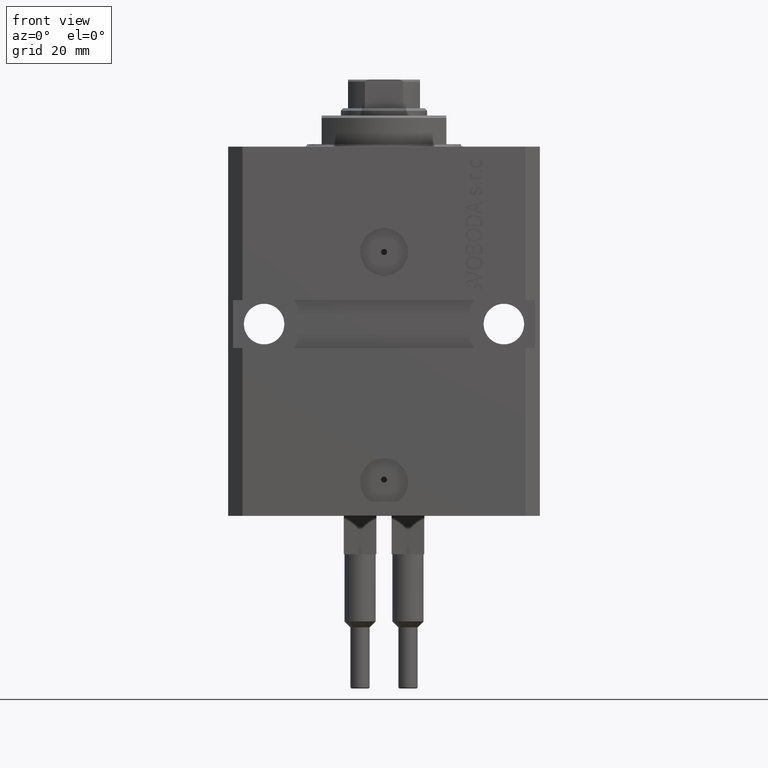
[diagram: clean part render]
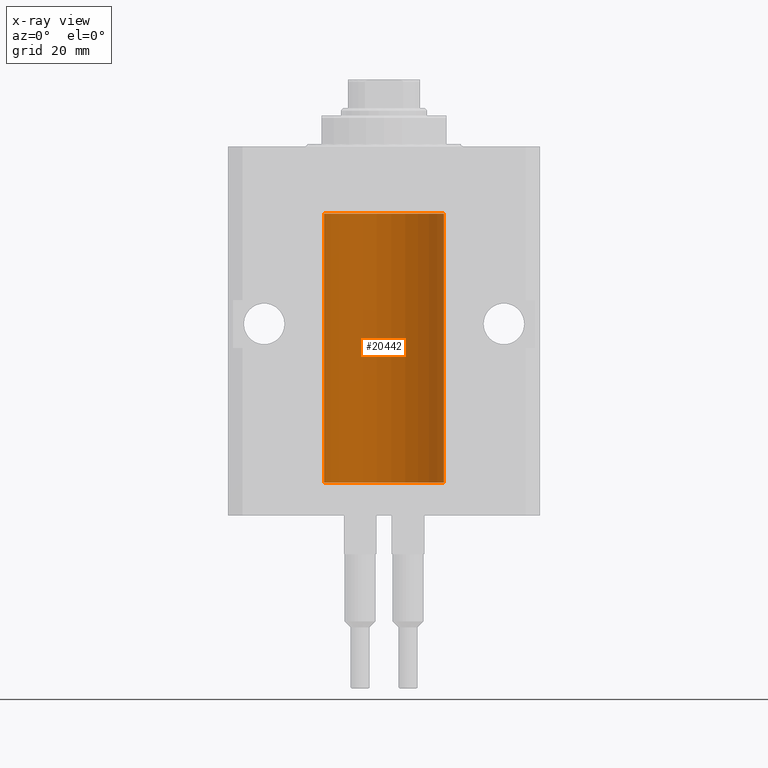
[diagram: x-ray — body ghosted, one internal face saturated and labeled with its STEP entity id]
A machine part, front view, then the same camera in x-ray: the body is ghosted and one INTERNAL B-rep face — a face not visible from any outside direction — is saturated and labeled: STEP entity #20442.
In plain terms, the highlighted cylindrical surface (partial cylindrical patch) has radius 12.5 mm, axis along (0, 0, 1).
Its self-contained STEP definition (entity closure, byte-faithful):
#1626 = VECTOR ( 'NONE', #45564, 1000.000000000000000 ) ;
#2144 = CARTESIAN_POINT ( 'NONE',  ( -12.49011732893843885, 0.5003763274120245352, -65.38348111289289477 ) ) ;
#2194 = VERTEX_POINT ( 'NONE', #34569 ) ;
#3290 = EDGE_CURVE ( 'NONE', #20895, #29060, #7616, .T. ) ;
#4784 = CARTESIAN_POINT ( 'NONE',  ( -12.50000000000000000, 1.530808498934191521E-15, -70.09999999999999432 ) ) ;
#5165 = VERTEX_POINT ( 'NONE', #37192 ) ;
#5752 = CARTESIAN_POINT ( 'NONE',  ( 12.50000000000000000, 0.000000000000000000, -70.09999999999999432 ) ) ;
#5776 = CARTESIAN_POINT ( 'NONE',  ( -12.48810268015257741, 0.5573155909661293705, -64.67347410093867666 ) ) ;
#6091 = VERTEX_POINT ( 'NONE', #41517 ) ;
#6341 = FACE_OUTER_BOUND ( 'NONE', #46190, .T. ) ;
#6590 = VERTEX_POINT ( 'NONE', #24911 ) ;
#6640 = CARTESIAN_POINT ( 'NONE',  ( -12.48436376893640443, 0.6250290278979917513, -22.08132082824473486 ) ) ;
#6915 = CARTESIAN_POINT ( 'NONE',  ( -12.50000000000017941, 3.883381774819353300E-13, -65.62500000000359535 ) ) ;
#7616 = LINE ( 'NONE', #37480, #7785 ) ;
#7655 = CARTESIAN_POINT ( 'NONE',  ( 12.50000000000000000, 0.000000000000000000, -13.99999999999999822 ) ) ;
#7758 = DIRECTION ( 'NONE',  ( 1.000000000000000000, 0.000000000000000000, 0.000000000000000000 ) ) ;
#7785 = VECTOR ( 'NONE', #22892, 1000.000000000000000 ) ;
#7810 = CARTESIAN_POINT ( 'NONE',  ( -12.50000000000000000, 1.530808498934191521E-15, -13.99999999999999822 ) ) ;
#7912 = ORIENTED_EDGE ( 'NONE', *, *, #20179, .T. ) ;
#8702 = CARTESIAN_POINT ( 'NONE',  ( -12.49999999999999822, 0.1631761135151225950, -65.62499999999985789 ) ) ;
#9302 = CARTESIAN_POINT ( 'NONE',  ( -12.49631005746706336, 0.3253680783018528255, -22.55856740465392463 ) ) ;
#9501 = CARTESIAN_POINT ( 'NONE',  ( -12.50000000000000000, 1.530808498934191521E-15, -70.09999999999999432 ) ) ;
#11001 = AXIS2_PLACEMENT_3D ( 'NONE', #44435, #11166, #7758 ) ;
#11166 = DIRECTION ( 'NONE',  ( 0.000000000000000000, 0.000000000000000000, 1.000000000000000000 ) ) ;
#11215 = ORIENTED_EDGE ( 'NONE', *, *, #37535, .F. ) ;
#11623 = B_SPLINE_CURVE_WITH_KNOTS ( 'NONE', 3,
 ( #42196, #31511, #38551, #12574, #38787, #5776, #23249, #16680, #31029, #27377, #2144, #38076, #8702, #46313 ),
 .UNSPECIFIED., .F., .F.,
 ( 4, 2, 2, 2, 2, 2, 4 ),
 ( 3.492495172846855184E-18, 0.0002442924852390798859, 0.0004885849704781563023, 0.0009771699409563386254, 0.001221462426195450658, 0.001465754911434562473, 0.001954339881912786538 ),
 .UNSPECIFIED. ) ;
#12151 = CIRCLE ( 'NONE', #30780, 12.50000000000000000 ) ;
#12574 = CARTESIAN_POINT ( 'NONE',  ( -12.49625855304193500, 0.3150454781038046770, -64.45402800297485157 ) ) ;
#13090 = ORIENTED_EDGE ( 'NONE', *, *, #24669, .F. ) ;
#13424 = CARTESIAN_POINT ( 'NONE',  ( -12.49915784441386890, 0.1636601911727947889, -21.39126818989430490 ) ) ;
#13608 = DIRECTION ( 'NONE',  ( 1.000000000000000000, 0.000000000000000000, 0.000000000000000000 ) ) ;
#13663 = CARTESIAN_POINT ( 'NONE',  ( -12.49422197749724006, 0.3843754434364375916, -21.50047099568095277 ) ) ;
#13668 = DIRECTION ( 'NONE',  ( 0.000000000000000000, 0.000000000000000000, 1.000000000000000000 ) ) ;
#13897 = CARTESIAN_POINT ( 'NONE',  ( -12.48436813453758454, 0.6249418250771192618, -21.83668996798922635 ) ) ;
#15217 = LINE ( 'NONE', #4784, #1626 ) ;
#16584 = CARTESIAN_POINT ( 'NONE',  ( -12.48520330846397819, 0.6088355886774127201, -22.16325431852561323 ) ) ;
#16680 = CARTESIAN_POINT ( 'NONE',  ( -12.48436376893640265, 0.6250290278979918623, -65.08132082824472775 ) ) ;
#17242 = CARTESIAN_POINT ( 'NONE',  ( 0.000000000000000000, 0.000000000000000000, -70.09999999999999432 ) ) ;
#17794 = VERTEX_POINT ( 'NONE', #7810 ) ;
#18418 = EDGE_CURVE ( 'NONE', #5165, #17794, #15217, .T. ) ;
#19003 = VECTOR ( 'NONE', #46644, 1000.000000000000000 ) ;
#20179 = EDGE_CURVE ( 'NONE', #5165, #2194, #21455, .T. ) ;
#20442 = ADVANCED_FACE ( 'NONE', ( #6341 ), #31362, .F. ) ;
#20459 = CARTESIAN_POINT ( 'NONE',  ( -12.49011732893843529, 0.5003763274120274218, -22.38348111289287701 ) ) ;
#20895 = VERTEX_POINT ( 'NONE', #5752 ) ;
#21455 = B_SPLINE_CURVE_WITH_KNOTS ( 'NONE', 3,
 ( #39895, #28472, #13424, #36008, #13663, #28709, #13897, #6640, #16584, #27750, #20459, #9302, #35286, #35763 ),
 .UNSPECIFIED., .F., .F.,
 ( 4, 2, 2, 2, 2, 2, 4 ),
 ( 2.030551168097110502E-20, 0.0002442924852390969078, 0.0004885849704781938157, 0.0009771699409563880650, 0.001221462426195485135, 0.001465754911434582423, 0.001954339881912776130 ),
 .UNSPECIFIED. ) ;
#21819 = ORIENTED_EDGE ( 'NONE', *, *, #24773, .F. ) ;
#22892 = DIRECTION ( 'NONE',  ( -0.000000000000000000, -0.000000000000000000, 1.000000000000000000 ) ) ;
#23249 = CARTESIAN_POINT ( 'NONE',  ( -12.48436813453758809, 0.6249418250771181516, -64.83668996798922990 ) ) ;
#23732 = ORIENTED_EDGE ( 'NONE', *, *, #18418, .F. ) ;
#24113 = VECTOR ( 'NONE', #47587, 1000.000000000000000 ) ;
#24669 = EDGE_CURVE ( 'NONE', #6590, #2194, #44901, .T. ) ;
#24773 = EDGE_CURVE ( 'NONE', #20895, #6091, #28043, .T. ) ;
#24911 = CARTESIAN_POINT ( 'NONE',  ( -12.50000000000000000, -1.053276923642966949E-14, -64.37500000000000000 ) ) ;
#25729 = CARTESIAN_POINT ( 'NONE',  ( -12.50000000000000000, 1.530808498934191521E-15, -70.09999999999999432 ) ) ;
#27377 = CARTESIAN_POINT ( 'NONE',  ( -12.48809959379011580, 0.5462151254764966435, -65.31461370481613926 ) ) ;
#27750 = CARTESIAN_POINT ( 'NONE',  ( -12.48809959379011403, 0.5462151254764975317, -22.31461370481611795 ) ) ;
#28043 = CIRCLE ( 'NONE', #11001, 12.50000000000000000 ) ;
#28472 = CARTESIAN_POINT ( 'NONE',  ( -12.50000000000000000, 0.08260426088729219685, -21.37500000000000000 ) ) ;
#28709 = CARTESIAN_POINT ( 'NONE',  ( -12.48810268015257563, 0.5573155909661349217, -21.67347410093867666 ) ) ;
#29060 = VERTEX_POINT ( 'NONE', #7655 ) ;
#30780 = AXIS2_PLACEMENT_3D ( 'NONE', #47418, #13668, #43287 ) ;
#31029 = CARTESIAN_POINT ( 'NONE',  ( -12.48520330846398174, 0.6088355886774118320, -65.16325431852561678 ) ) ;
#31362 = CYLINDRICAL_SURFACE ( 'NONE', #38862, 12.50000000000000000 ) ;
#31511 = CARTESIAN_POINT ( 'NONE',  ( -12.49999999999999645, 0.08260426088728485550, -64.37499999999998579 ) ) ;
#32074 = LINE ( 'NONE', #9501, #19003 ) ;
#34569 = CARTESIAN_POINT ( 'NONE',  ( -12.50000000000017941, 3.883381646606358354E-13, -22.62500000000358824 ) ) ;
#35286 = CARTESIAN_POINT ( 'NONE',  ( -12.49999999999999289, 0.1631761135151241215, -22.62499999999984013 ) ) ;
#35763 = CARTESIAN_POINT ( 'NONE',  ( -12.50000000000017941, 3.883381646606358354E-13, -22.62500000000358824 ) ) ;
#36008 = CARTESIAN_POINT ( 'NONE',  ( -12.49625855304193678, 0.3150454781038042329, -21.45402800297484802 ) ) ;
#37192 = CARTESIAN_POINT ( 'NONE',  ( -12.50000000000000000, -2.089494013101375120E-17, -21.37499999999999645 ) ) ;
#37480 = CARTESIAN_POINT ( 'NONE',  ( 12.50000000000000000, 0.000000000000000000, -70.09999999999999432 ) ) ;
#37535 = EDGE_CURVE ( 'NONE', #6091, #42910, #32074, .T. ) ;
#37776 = ORIENTED_EDGE ( 'NONE', *, *, #3290, .T. ) ;
#38076 = CARTESIAN_POINT ( 'NONE',  ( -12.49631005746706514, 0.3253680783018499389, -65.55856740465391397 ) ) ;
#38551 = CARTESIAN_POINT ( 'NONE',  ( -12.49915784441386890, 0.1636601911727943726, -64.39126818989430490 ) ) ;
#38787 = CARTESIAN_POINT ( 'NONE',  ( -12.49422197749724361, 0.3843754434364307082, -64.50047099568097053 ) ) ;
#38862 = AXIS2_PLACEMENT_3D ( 'NONE', #17242, #47116, #13608 ) ;
#39895 = CARTESIAN_POINT ( 'NONE',  ( -12.50000000000000000, -2.089494013101375120E-17, -21.37499999999999645 ) ) ;
#41293 = EDGE_CURVE ( 'NONE', #29060, #17794, #12151, .T. ) ;
#41517 = CARTESIAN_POINT ( 'NONE',  ( -12.50000000000000000, 1.530808498934191521E-15, -70.09999999999999432 ) ) ;
#42196 = CARTESIAN_POINT ( 'NONE',  ( -12.50000000000000000, -1.053276923642966949E-14, -64.37500000000000000 ) ) ;
#42204 = ORIENTED_EDGE ( 'NONE', *, *, #41293, .T. ) ;
#42910 = VERTEX_POINT ( 'NONE', #6915 ) ;
#43287 = DIRECTION ( 'NONE',  ( 1.000000000000000000, 0.000000000000000000, 0.000000000000000000 ) ) ;
#43305 = ORIENTED_EDGE ( 'NONE', *, *, #44495, .T. ) ;
#44435 = CARTESIAN_POINT ( 'NONE',  ( 0.000000000000000000, 0.000000000000000000, -70.09999999999999432 ) ) ;
#44495 = EDGE_CURVE ( 'NONE', #6590, #42910, #11623, .T. ) ;
#44901 = LINE ( 'NONE', #25729, #24113 ) ;
#45564 = DIRECTION ( 'NONE',  ( -0.000000000000000000, -0.000000000000000000, 1.000000000000000000 ) ) ;
#46190 = EDGE_LOOP ( 'NONE', ( #11215, #21819, #37776, #42204, #23732, #7912, #13090, #43305 ) ) ;
#46313 = CARTESIAN_POINT ( 'NONE',  ( -12.50000000000017941, 3.883381774819353300E-13, -65.62500000000359535 ) ) ;
#46644 = DIRECTION ( 'NONE',  ( -0.000000000000000000, -0.000000000000000000, 1.000000000000000000 ) ) ;
#47116 = DIRECTION ( 'NONE',  ( -0.000000000000000000, -0.000000000000000000, 1.000000000000000000 ) ) ;
#47418 = CARTESIAN_POINT ( 'NONE',  ( 0.000000000000000000, 0.000000000000000000, -13.99999999999999822 ) ) ;
#47587 = DIRECTION ( 'NONE',  ( -0.000000000000000000, -0.000000000000000000, 1.000000000000000000 ) ) ;